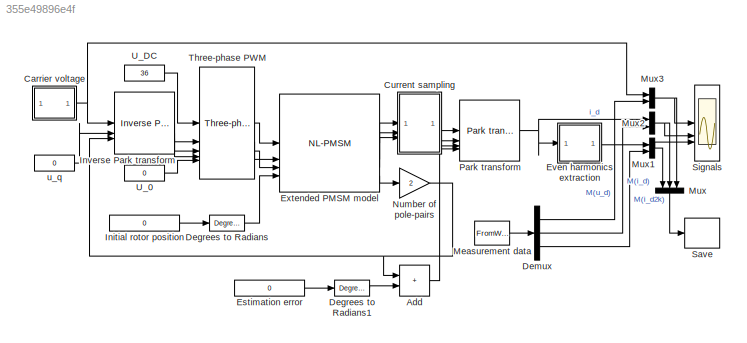
MODEL slx_355e49896e4f
KIND model
CONFIG AbsTol = auto
CONFIG EnableMultiTasking = off
CONFIG FixedStep = auto
CONFIG MaxStep = 5e-8
CONFIG MinStep = auto
CONFIG RelTol = 1e-5
CONFIG SampleTimeConstraint = Unconstrained
CONFIG SolverName = VariableStepAuto
CONFIG StartTime = 0.0
CONFIG StopTime = 5e-3
BLOCK [Sum] Add
  IconShape = rectangular
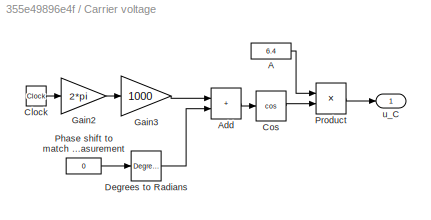
BLOCK [SubSystem] Carrier voltage
BLOCK [Constant] Carrier voltage/A
  Value = 6.4
BLOCK [Sum] Carrier voltage/Add
  IconShape = rectangular
BLOCK [Clock] Carrier voltage/Clock
BLOCK [Trigonometry] Carrier voltage/Cos
  Operator = cos
BLOCK [Reference] Carrier voltage/Degrees to Radians  REF=simulink_extras/Transformations/Degrees to
Radians
  SourceBlock = simulink_extras/Transformations/Degrees to\nRadians
  SourceType = DegreesToRadians
BLOCK [Gain] Carrier voltage/Gain2
  Gain = 2*pi
BLOCK [Gain] Carrier voltage/Gain3
  Gain = 1000
BLOCK [Constant] Carrier voltage/Phase shift to match the measurement
  Value = 0
BLOCK [Product] Carrier voltage/Product
BLOCK [Outport] Carrier voltage/u_C
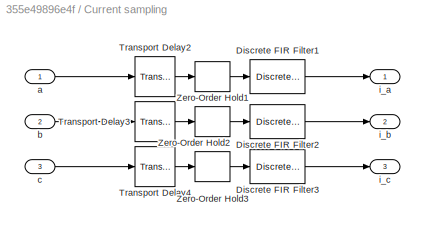
BLOCK [SubSystem] Current sampling
  NameLocation = top
BLOCK [DiscreteFir] Current sampling/Discrete FIR Filter1
  Coefficients = ones(1, 6)/6
  InputPortMap = u0
  OutputPortMap = o0
  SampleTime = 1/240000
BLOCK [DiscreteFir] Current sampling/Discrete FIR Filter2
  Coefficients = ones(1, 6)/6
  InputPortMap = u0
  OutputPortMap = o0
  SampleTime = 1/240000
BLOCK [DiscreteFir] Current sampling/Discrete FIR Filter3
  Coefficients = ones(1, 6)/6
  InputPortMap = u0
  OutputPortMap = o0
  SampleTime = 1/240000
BLOCK [TransportDelay] Current sampling/Transport Delay2
  DelayTime = 1/240000/2
BLOCK [TransportDelay] Current sampling/Transport Delay3
  DelayTime = 1/240000/2
BLOCK [TransportDelay] Current sampling/Transport Delay4
  DelayTime = 1/240000/2
BLOCK [ZeroOrderHold] Current sampling/Zero-Order Hold1
  SampleTime = 1/240000
BLOCK [ZeroOrderHold] Current sampling/Zero-Order Hold2
  SampleTime = 1/240000
BLOCK [ZeroOrderHold] Current sampling/Zero-Order Hold3
  SampleTime = 1/240000
BLOCK [Inport] Current sampling/a
BLOCK [Inport] Current sampling/b
  Port = 2
BLOCK [Inport] Current sampling/c
  Port = 3
BLOCK [Outport] Current sampling/i_a
BLOCK [Outport] Current sampling/i_b
  Port = 2
BLOCK [Outport] Current sampling/i_c
  Port = 3
BLOCK [Reference] Degrees to Radians  REF=simulink_extras/Transformations/Degrees to
Radians
  SourceBlock = simulink_extras/Transformations/Degrees to\nRadians
  SourceType = DegreesToRadians
BLOCK [Reference] Degrees to Radians1  REF=simulink_extras/Transformations/Degrees to
Radians
  SourceBlock = simulink_extras/Transformations/Degrees to\nRadians
  SourceType = DegreesToRadians
BLOCK [Demux] Demux
  Outputs = 3
BLOCK [Constant] Estimation error
  Value = 0
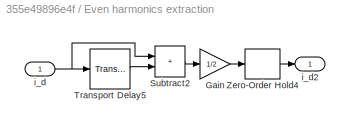
BLOCK [SubSystem] Even harmonics extraction
BLOCK [Gain] Even harmonics extraction/Gain
  Gain = 1/2
BLOCK [Sum] Even harmonics extraction/Subtract2
  IconShape = rectangular
BLOCK [TransportDelay] Even harmonics extraction/Transport Delay5
  DelayTime = (1/240000)*240/2
BLOCK [ZeroOrderHold] Even harmonics extraction/Zero-Order Hold4
  SampleTime = 1/240000
BLOCK [Inport] Even harmonics extraction/i_d
BLOCK [Outport] Even harmonics extraction/i_d2
BLOCK [Reference] Extended PMSM model  REF=SLNS/Electric machines/NL-PMSM
  SourceBlock = SLNS/Electric machines/NL-PMSM
  SourceType = Permanent magnet synchronous motor
BLOCK [Constant] Initial rotor position
  Value = 0
BLOCK [Reference] Inverse Park transform  REF=SLNS/Transformations/Inverse Park transform
  SourceBlock = SLNS/Transformations/Inverse Park transform
  SourceType = Inverse Park transform
BLOCK [FromWorkspace] Measurement data
  Interpolate = off
  OutputAfterFinalValue = Cyclic repetition
  SampleTime = 1/240000
  VariableName = NM
BLOCK [Mux] Mux
  DisplayOption = bar
  Inputs = 3
  NameLocation = left
BLOCK [Mux] Mux1
  DisplayOption = bar
  Inputs = 2
BLOCK [Mux] Mux2
  DisplayOption = bar
  Inputs = 2
BLOCK [Mux] Mux3
  DisplayOption = bar
  Inputs = 2
BLOCK [Gain] Number of pole-pairs
  Gain = 2
BLOCK [Reference] Park transform  REF=SLNS/Transformations/Park transform
  SourceBlock = SLNS/Transformations/Park transform
  SourceType = Park transform
BLOCK [ToWorkspace] Save
  FixptAsFi = on
  MaxDataPoints = inf
  SampleTime = 1/240000
  VariableName = SO
BLOCK [Scope] Signals
  Floating = off
  NumInputPorts = 3
  ScopeSpecificationString = Simulink.scopes.TimeScopeBlockCfg('CurrentConfiguration', extmgr.ConfigurationSet(extmgr.Configuration('Core','General UI',true),extmgr.Configuration('Core','Source UI',true),extmgr.Configuration('Sources','WiredSimulink',true,'DataLoggingVariableName','ScopeData2'),extmgr.Configuration('Visuals','Time Domain',true,'SerializedDisplays',{struct('MinYLimReal','-8.00000','MaxYLimReal','8.00000','YLab...<+2824ch>
BLOCK [Reference] Three-phase PWM  REF=SLNS/Power electronics/Three-phase PWM
  SourceBlock = SLNS/Power electronics/Three-phase PWM
  SourceType = Three-phase PWM
BLOCK [Constant] U_0
  Value = 0
BLOCK [Constant] U_DC
  NameLocation = top
  Value = 36
BLOCK [Constant] u_q
  Value = 0
LINE Add:1 -> Park transform:4
LINE Carrier voltage/A:1 -> Carrier voltage/Product:1
LINE Carrier voltage/Add:1 -> Carrier voltage/Cos:1
LINE Carrier voltage/Clock:1 -> Carrier voltage/Gain2:1
LINE Carrier voltage/Cos:1 -> Carrier voltage/Product:2
LINE Carrier voltage/Degrees to Radians:1 -> Carrier voltage/Add:2
LINE Carrier voltage/Gain2:1 -> Carrier voltage/Gain3:1
LINE Carrier voltage/Gain3:1 -> Carrier voltage/Add:1
LINE Carrier voltage/Phase shift to match the measurement:1 -> Carrier voltage/Degrees to Radians:1
LINE Carrier voltage/Product:1 -> Carrier voltage/u_C:1
NET Carrier voltage:1 -> Inverse Park transform:1, Mux3:1
LINE Current sampling/Discrete FIR Filter1:1 -> Current sampling/i_a:1
LINE Current sampling/Discrete FIR Filter2:1 -> Current sampling/i_b:1
LINE Current sampling/Discrete FIR Filter3:1 -> Current sampling/i_c:1
LINE Current sampling/Transport Delay2:1 -> Current sampling/Zero-Order Hold1:1
LINE Current sampling/Transport Delay3:1 -> Current sampling/Zero-Order Hold2:1
LINE Current sampling/Transport Delay4:1 -> Current sampling/Zero-Order Hold3:1
LINE Current sampling/Zero-Order Hold1:1 -> Current sampling/Discrete FIR Filter1:1
LINE Current sampling/Zero-Order Hold2:1 -> Current sampling/Discrete FIR Filter2:1
LINE Current sampling/Zero-Order Hold3:1 -> Current sampling/Discrete FIR Filter3:1
LINE Current sampling/a:1 -> Current sampling/Transport Delay2:1
LINE Current sampling/b:1 -> Current sampling/Transport Delay3:1
LINE Current sampling/c:1 -> Current sampling/Transport Delay4:1
LINE Current sampling:1 -> Park transform:1
LINE Current sampling:2 -> Park transform:2
LINE Current sampling:3 -> Park transform:3
LINE Degrees to Radians1:1 -> Add:2
LINE Degrees to Radians:1 -> Extended PMSM model:5
LINE Demux:1 -> Mux3:2
LINE Demux:2 -> Mux2:2
LINE Demux:3 -> Mux1:2
LINE Estimation error:1 -> Degrees to Radians1:1
LINE Even harmonics extraction/Gain:1 -> Even harmonics extraction/Zero-Order Hold4:1
LINE Even harmonics extraction/Subtract2:1 -> Even harmonics extraction/Gain:1
LINE Even harmonics extraction/Transport Delay5:1 -> Even harmonics extraction/Subtract2:2
LINE Even harmonics extraction/Zero-Order Hold4:1 -> Even harmonics extraction/i_d2:1
NET Even harmonics extraction/i_d:1 -> Even harmonics extraction/Subtract2:1, Even harmonics extraction/Transport Delay5:1
LINE Even harmonics extraction:1 -> Mux1:1
LINE Extended PMSM model:1 -> Current sampling:1
LINE Extended PMSM model:2 -> Current sampling:2
LINE Extended PMSM model:3 -> Current sampling:3
LINE Extended PMSM model:5 -> Number of pole-pairs:1
LINE Initial rotor position:1 -> Degrees to Radians:1
LINE Inverse Park transform:1 -> Three-phase PWM:2
LINE Inverse Park transform:2 -> Three-phase PWM:3
LINE Inverse Park transform:3 -> Three-phase PWM:4
LINE Measurement data:1 -> Demux:1
NET Mux1:1 -> Mux:1, Signals:3
NET Mux2:1 -> Mux:2, Signals:2
NET Mux3:1 -> Mux:3, Signals:1
LINE Mux:1 -> Save:1
NET Number of pole-pairs:1 -> Add:1, Inverse Park transform:3
NET Park transform:1 -> Even harmonics extraction:1, Mux2:1
LINE Three-phase PWM:1 -> Extended PMSM model:1
LINE Three-phase PWM:2 -> Extended PMSM model:2
LINE Three-phase PWM:3 -> Extended PMSM model:3
LINE U_0:1 -> Three-phase PWM:5
LINE U_DC:1 -> Three-phase PWM:1
LINE u_q:1 -> Inverse Park transform:2
note: NET lines group one-source signal fan-out (src -> all destinations, sorted); 1:1 wires keep LINE
